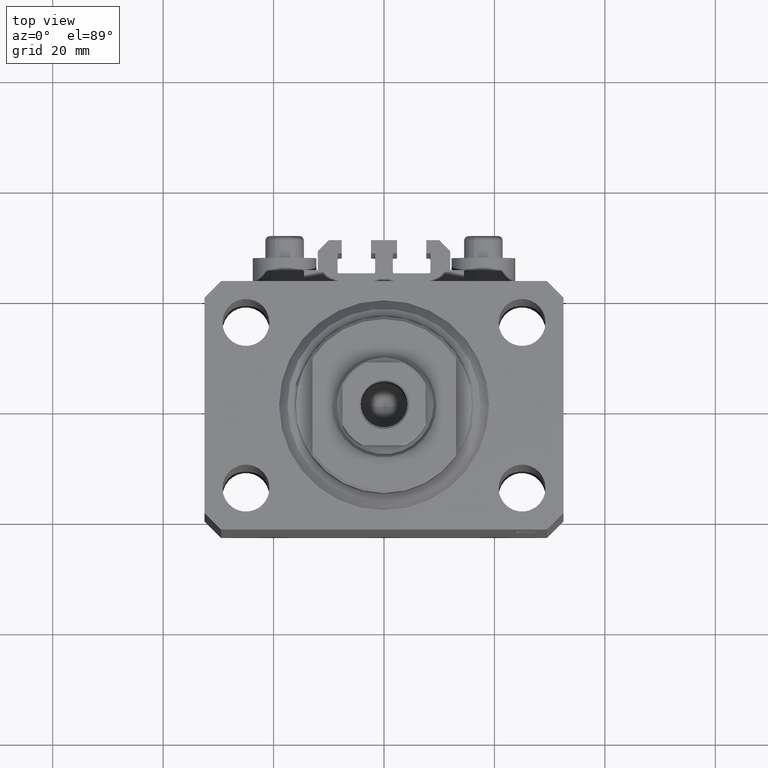
[diagram: clean part render]
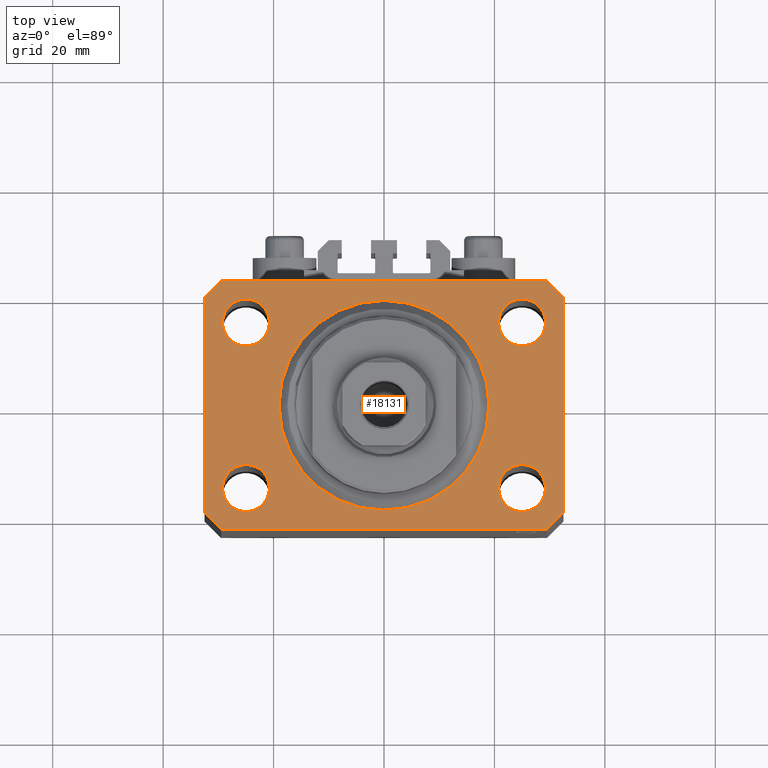
[diagram: same view with one face highlighted and labeled with its STEP entity id]
A machine part, top view. The second image highlights one B-rep face of the part: STEP entity #18131.
In plain terms, the highlighted planar face has unit normal (0, 0, 1).
Its self-contained STEP definition (entity closure, byte-faithful):
#258 = DIRECTION ( 'NONE',  ( 0.000000000000000000, 0.000000000000000000, 1.000000000000000000 ) ) ;
#282 = EDGE_LOOP ( 'NONE', ( #23242, #38615 ) ) ;
#377 = CIRCLE ( 'NONE', #29473, 4.250000000021375790 ) ;
#382 = CIRCLE ( 'NONE', #43927, 4.249999999957291053 ) ;
#492 = CARTESIAN_POINT ( 'NONE',  ( 0.000000000000000000, 0.000000000000000000, 0.000000000000000000 ) ) ;
#598 = CARTESIAN_POINT ( 'NONE',  ( 29.49999999999650413, -22.49999999999949196, 0.000000000000000000 ) ) ;
#769 = CIRCLE ( 'NONE', #43670, 4.250000000040370374 ) ;
#1936 = EDGE_LOOP ( 'NONE', ( #15899, #10282 ) ) ;
#2119 = CARTESIAN_POINT ( 'NONE',  ( 19.00000000000000000, 0.000000000000000000, 0.000000000000000000 ) ) ;
#2207 = CARTESIAN_POINT ( 'NONE',  ( -29.25000000002137668, 14.99999999999999645, 0.000000000000000000 ) ) ;
#2208 = EDGE_CURVE ( 'NONE', #18739, #9993, #382, .T. ) ;
#2263 = CARTESIAN_POINT ( 'NONE',  ( 29.49999999999707967, 22.49999999999952038, 0.000000000000000000 ) ) ;
#2501 = CIRCLE ( 'NONE', #39274, 4.249999999957291053 ) ;
#2664 = CIRCLE ( 'NONE', #42494, 4.249999999976314058 ) ;
#3399 = DIRECTION ( 'NONE',  ( 1.000000000000000000, 0.000000000000000000, 0.000000000000000000 ) ) ;
#3644 = DIRECTION ( 'NONE',  ( -1.000000000000000000, -3.528251137580330676E-16, 0.000000000000000000 ) ) ;
#3720 = CIRCLE ( 'NONE', #34348, 19.00000000000000000 ) ;
#3729 = CARTESIAN_POINT ( 'NONE',  ( -29.49999999999650413, 22.49999999999949907, 0.000000000000000000 ) ) ;
#4151 = CARTESIAN_POINT ( 'NONE',  ( 0.000000000000000000, 0.000000000000000000, 0.000000000000000000 ) ) ;
#4335 = EDGE_CURVE ( 'NONE', #46810, #15173, #20897, .T. ) ;
#4397 = ORIENTED_EDGE ( 'NONE', *, *, #4335, .T. ) ;
#4534 = DIRECTION ( 'NONE',  ( 0.000000000000000000, 0.000000000000000000, 1.000000000000000000 ) ) ;
#4600 = VECTOR ( 'NONE', #32973, 1000.000000000000000 ) ;
#4688 = LINE ( 'NONE', #8508, #6266 ) ;
#4802 = ORIENTED_EDGE ( 'NONE', *, *, #22401, .F. ) ;
#4807 = VERTEX_POINT ( 'NONE', #2207 ) ;
#4814 = EDGE_CURVE ( 'NONE', #8331, #34739, #2664, .T. ) ;
#4881 = EDGE_CURVE ( 'NONE', #47151, #4807, #377, .T. ) ;
#5317 = AXIS2_PLACEMENT_3D ( 'NONE', #38126, #46043, #38364 ) ;
#5551 = AXIS2_PLACEMENT_3D ( 'NONE', #36046, #32672, #17812 ) ;
#6266 = VECTOR ( 'NONE', #16642, 1000.000000000000000 ) ;
#6423 = CARTESIAN_POINT ( 'NONE',  ( -32.49999999999650413, -19.49999999999949907, 0.000000000000000000 ) ) ;
#7084 = DIRECTION ( 'NONE',  ( 1.334402673828349134E-14, 1.000000000000000000, 0.000000000000000000 ) ) ;
#7190 = CARTESIAN_POINT ( 'NONE',  ( -20.74999999995962341, -15.00000000000000355, 0.000000000000000000 ) ) ;
#7585 = AXIS2_PLACEMENT_3D ( 'NONE', #4151, #29803, #29104 ) ;
#8331 = VERTEX_POINT ( 'NONE', #20504 ) ;
#8508 = CARTESIAN_POINT ( 'NONE',  ( 32.49999999999702993, 19.49999999999945999, 0.000000000000000000 ) ) ;
#9144 = CARTESIAN_POINT ( 'NONE',  ( -24.99999999999999289, -15.00000000000000355, 0.000000000000000000 ) ) ;
#9378 = DIRECTION ( 'NONE',  ( 1.000000000000000000, 0.000000000000000000, 0.000000000000000000 ) ) ;
#9993 = VERTEX_POINT ( 'NONE', #13358 ) ;
#10282 = ORIENTED_EDGE ( 'NONE', *, *, #47055, .F. ) ;
#10333 = DIRECTION ( 'NONE',  ( 0.000000000000000000, 0.000000000000000000, 1.000000000000000000 ) ) ;
#10358 = EDGE_CURVE ( 'NONE', #4807, #47151, #21223, .T. ) ;
#10421 = DIRECTION ( 'NONE',  ( 1.000000000000000000, 0.000000000000000000, 0.000000000000000000 ) ) ;
#10814 = EDGE_LOOP ( 'NONE', ( #45401, #13411 ) ) ;
#12202 = CARTESIAN_POINT ( 'NONE',  ( 20.75000000004271072, 14.99999999999999289, 0.000000000000000000 ) ) ;
#12394 = VERTEX_POINT ( 'NONE', #7190 ) ;
#12815 = ORIENTED_EDGE ( 'NONE', *, *, #2208, .F. ) ;
#12825 = VERTEX_POINT ( 'NONE', #40117 ) ;
#12961 = CARTESIAN_POINT ( 'NONE',  ( -32.49999999999650413, -19.49999999999949907, 0.000000000000000000 ) ) ;
#13162 = ORIENTED_EDGE ( 'NONE', *, *, #29816, .T. ) ;
#13235 = CARTESIAN_POINT ( 'NONE',  ( 24.99999999999999289, -15.00000000000000355, 0.000000000000000000 ) ) ;
#13358 = CARTESIAN_POINT ( 'NONE',  ( 29.24999999995729283, 14.99999999999999289, 0.000000000000000000 ) ) ;
#13411 = ORIENTED_EDGE ( 'NONE', *, *, #21445, .F. ) ;
#13828 = AXIS2_PLACEMENT_3D ( 'NONE', #9144, #15866, #9378 ) ;
#14385 = VECTOR ( 'NONE', #7084, 1000.000000000000000 ) ;
#14653 = CARTESIAN_POINT ( 'NONE',  ( 29.49999999999707967, 22.49999999999952038, 0.000000000000000000 ) ) ;
#15088 = DIRECTION ( 'NONE',  ( 1.000000000000000000, 0.000000000000000000, 0.000000000000000000 ) ) ;
#15173 = VERTEX_POINT ( 'NONE', #12961 ) ;
#15306 = EDGE_CURVE ( 'NONE', #12394, #16658, #769, .T. ) ;
#15475 = EDGE_CURVE ( 'NONE', #30407, #41271, #18346, .T. ) ;
#15866 = DIRECTION ( 'NONE',  ( 0.000000000000000000, 0.000000000000000000, 1.000000000000000000 ) ) ;
#15899 = ORIENTED_EDGE ( 'NONE', *, *, #46505, .F. ) ;
#16642 = DIRECTION ( 'NONE',  ( -0.7071067811865344721, 0.7071067811865606734, 0.000000000000000000 ) ) ;
#16658 = VERTEX_POINT ( 'NONE', #45961 ) ;
#16705 = DIRECTION ( 'NONE',  ( -0.7071067811865474617, -0.7071067811865474617, 0.000000000000000000 ) ) ;
#16767 = FACE_BOUND ( 'NONE', #10814, .T. ) ;
#17035 = EDGE_CURVE ( 'NONE', #12825, #30407, #26625, .T. ) ;
#17068 = DIRECTION ( 'NONE',  ( 0.000000000000000000, 0.000000000000000000, 1.000000000000000000 ) ) ;
#17569 = CIRCLE ( 'NONE', #13828, 4.250000000040370374 ) ;
#17636 = VECTOR ( 'NONE', #23025, 1000.000000000000000 ) ;
#17812 = DIRECTION ( 'NONE',  ( 1.000000000000000000, 0.000000000000000000, 0.000000000000000000 ) ) ;
#17866 = EDGE_CURVE ( 'NONE', #16658, #12394, #17569, .T. ) ;
#18131 = ADVANCED_FACE ( 'NONE', ( #23978, #34773, #16767, #27116, #23276, #23502 ), #41731, .T. ) ;
#18304 = VECTOR ( 'NONE', #21538, 1000.000000000000114 ) ;
#18346 = LINE ( 'NONE', #598, #4600 ) ;
#18739 = VERTEX_POINT ( 'NONE', #12202 ) ;
#19094 = CIRCLE ( 'NONE', #7585, 19.00000000000000000 ) ;
#19169 = DIRECTION ( 'NONE',  ( 1.000000000000000000, 0.000000000000000000, 0.000000000000000000 ) ) ;
#19211 = EDGE_LOOP ( 'NONE', ( #4802, #12815 ) ) ;
#20504 = CARTESIAN_POINT ( 'NONE',  ( 29.24999999997631051, -15.00000000000000355, 0.000000000000000000 ) ) ;
#20867 = VERTEX_POINT ( 'NONE', #2263 ) ;
#20897 = LINE ( 'NONE', #24254, #35573 ) ;
#21223 = CIRCLE ( 'NONE', #42660, 4.250000000021375790 ) ;
#21445 = EDGE_CURVE ( 'NONE', #34739, #8331, #23942, .T. ) ;
#21457 = ORIENTED_EDGE ( 'NONE', *, *, #10358, .F. ) ;
#21538 = DIRECTION ( 'NONE',  ( 0.7071067811865474617, -0.7071067811865474617, 0.000000000000000000 ) ) ;
#22123 = CARTESIAN_POINT ( 'NONE',  ( 32.49999999999651124, -19.49999999999949196, 0.000000000000000000 ) ) ;
#22398 = ORIENTED_EDGE ( 'NONE', *, *, #30093, .T. ) ;
#22401 = EDGE_CURVE ( 'NONE', #9993, #18739, #2501, .T. ) ;
#22550 = DIRECTION ( 'NONE',  ( 1.000000000000000000, 0.000000000000000000, 0.000000000000000000 ) ) ;
#23025 = DIRECTION ( 'NONE',  ( 1.000000000000000000, 1.176083712526788232E-16, 0.000000000000000000 ) ) ;
#23230 = ORIENTED_EDGE ( 'NONE', *, *, #39901, .T. ) ;
#23242 = ORIENTED_EDGE ( 'NONE', *, *, #15306, .F. ) ;
#23276 = FACE_BOUND ( 'NONE', #43480, .T. ) ;
#23333 = CARTESIAN_POINT ( 'NONE',  ( 32.49999999999702993, 19.49999999999945999, 0.000000000000000000 ) ) ;
#23502 = FACE_OUTER_BOUND ( 'NONE', #44325, .T. ) ;
#23635 = CARTESIAN_POINT ( 'NONE',  ( -25.00000000000000000, 14.99999999999999645, 0.000000000000000000 ) ) ;
#23942 = CIRCLE ( 'NONE', #5551, 4.249999999976314058 ) ;
#23978 = FACE_BOUND ( 'NONE', #1936, .T. ) ;
#24044 = DIRECTION ( 'NONE',  ( 1.000000000000000000, 0.000000000000000000, 0.000000000000000000 ) ) ;
#24254 = CARTESIAN_POINT ( 'NONE',  ( -32.49999999999650413, 19.49999999999949907, 0.000000000000000000 ) ) ;
#24346 = VERTEX_POINT ( 'NONE', #2119 ) ;
#24843 = DIRECTION ( 'NONE',  ( 0.000000000000000000, 0.000000000000000000, 1.000000000000000000 ) ) ;
#25327 = LINE ( 'NONE', #39943, #14385 ) ;
#25351 = VERTEX_POINT ( 'NONE', #3729 ) ;
#25892 = CARTESIAN_POINT ( 'NONE',  ( 25.00000000000000000, 14.99999999999999289, 0.000000000000000000 ) ) ;
#26290 = ORIENTED_EDGE ( 'NONE', *, *, #17035, .T. ) ;
#26561 = ORIENTED_EDGE ( 'NONE', *, *, #15475, .T. ) ;
#26625 = LINE ( 'NONE', #45087, #17636 ) ;
#27116 = FACE_BOUND ( 'NONE', #19211, .T. ) ;
#27252 = DIRECTION ( 'NONE',  ( 1.000000000000000000, 0.000000000000000000, 0.000000000000000000 ) ) ;
#28900 = CARTESIAN_POINT ( 'NONE',  ( -19.00000000000000000, 2.326828918379970970E-15, 0.000000000000000000 ) ) ;
#29104 = DIRECTION ( 'NONE',  ( 1.000000000000000000, 0.000000000000000000, 0.000000000000000000 ) ) ;
#29473 = AXIS2_PLACEMENT_3D ( 'NONE', #40307, #10333, #3399 ) ;
#29734 = DIRECTION ( 'NONE',  ( 0.000000000000000000, 0.000000000000000000, 1.000000000000000000 ) ) ;
#29803 = DIRECTION ( 'NONE',  ( 0.000000000000000000, 0.000000000000000000, 1.000000000000000000 ) ) ;
#29816 = EDGE_CURVE ( 'NONE', #25351, #46810, #45277, .T. ) ;
#30093 = EDGE_CURVE ( 'NONE', #30395, #20867, #4688, .T. ) ;
#30395 = VERTEX_POINT ( 'NONE', #23333 ) ;
#30407 = VERTEX_POINT ( 'NONE', #37471 ) ;
#30842 = DIRECTION ( 'NONE',  ( 0.000000000000000000, 0.000000000000000000, 1.000000000000000000 ) ) ;
#32672 = DIRECTION ( 'NONE',  ( 0.000000000000000000, 0.000000000000000000, 1.000000000000000000 ) ) ;
#32973 = DIRECTION ( 'NONE',  ( 0.7071067811865483499, 0.7071067811865466846, 0.000000000000000000 ) ) ;
#34348 = AXIS2_PLACEMENT_3D ( 'NONE', #492, #258, #15088 ) ;
#34739 = VERTEX_POINT ( 'NONE', #35312 ) ;
#34773 = FACE_BOUND ( 'NONE', #282, .T. ) ;
#35312 = CARTESIAN_POINT ( 'NONE',  ( 20.75000000002367884, -15.00000000000000355, 0.000000000000000000 ) ) ;
#35519 = DIRECTION ( 'NONE',  ( 0.000000000000000000, -1.000000000000000000, 0.000000000000000000 ) ) ;
#35573 = VECTOR ( 'NONE', #35519, 1000.000000000000000 ) ;
#35610 = ORIENTED_EDGE ( 'NONE', *, *, #42031, .T. ) ;
#35633 = CARTESIAN_POINT ( 'NONE',  ( -24.99999999999999289, -15.00000000000000355, 0.000000000000000000 ) ) ;
#35687 = LINE ( 'NONE', #6423, #18304 ) ;
#36046 = CARTESIAN_POINT ( 'NONE',  ( 24.99999999999999289, -15.00000000000000355, 0.000000000000000000 ) ) ;
#36934 = CARTESIAN_POINT ( 'NONE',  ( 25.00000000000000000, 14.99999999999999289, 0.000000000000000000 ) ) ;
#37471 = CARTESIAN_POINT ( 'NONE',  ( 29.49999999999650413, -22.49999999999949196, 0.000000000000000000 ) ) ;
#38126 = CARTESIAN_POINT ( 'NONE',  ( 0.000000000000000000, 0.000000000000000000, 0.000000000000000000 ) ) ;
#38364 = DIRECTION ( 'NONE',  ( 1.000000000000000000, 0.000000000000000000, -0.000000000000000000 ) ) ;
#38615 = ORIENTED_EDGE ( 'NONE', *, *, #17866, .F. ) ;
#39274 = AXIS2_PLACEMENT_3D ( 'NONE', #36934, #29734, #22550 ) ;
#39901 = EDGE_CURVE ( 'NONE', #41271, #30395, #25327, .T. ) ;
#39943 = CARTESIAN_POINT ( 'NONE',  ( 32.49999999999651124, -19.49999999999949196, 0.000000000000000000 ) ) ;
#40117 = CARTESIAN_POINT ( 'NONE',  ( -29.49999999999650413, -22.49999999999949907, 0.000000000000000000 ) ) ;
#40307 = CARTESIAN_POINT ( 'NONE',  ( -25.00000000000000000, 14.99999999999999645, 0.000000000000000000 ) ) ;
#41271 = VERTEX_POINT ( 'NONE', #22123 ) ;
#41438 = CARTESIAN_POINT ( 'NONE',  ( -29.49999999999650413, 22.49999999999949907, 0.000000000000000000 ) ) ;
#41731 = PLANE ( 'NONE',  #5317 ) ;
#41786 = CARTESIAN_POINT ( 'NONE',  ( -20.74999999997862687, 14.99999999999999645, 0.000000000000000000 ) ) ;
#41810 = VERTEX_POINT ( 'NONE', #28900 ) ;
#41913 = ORIENTED_EDGE ( 'NONE', *, *, #42466, .T. ) ;
#42031 = EDGE_CURVE ( 'NONE', #20867, #25351, #47303, .T. ) ;
#42466 = EDGE_CURVE ( 'NONE', #15173, #12825, #35687, .T. ) ;
#42494 = AXIS2_PLACEMENT_3D ( 'NONE', #13235, #17068, #24044 ) ;
#42660 = AXIS2_PLACEMENT_3D ( 'NONE', #23635, #30842, #27252 ) ;
#43480 = EDGE_LOOP ( 'NONE', ( #46396, #21457 ) ) ;
#43670 = AXIS2_PLACEMENT_3D ( 'NONE', #35633, #24843, #10421 ) ;
#43927 = AXIS2_PLACEMENT_3D ( 'NONE', #25892, #4534, #19169 ) ;
#44028 = CARTESIAN_POINT ( 'NONE',  ( -32.49999999999650413, 19.49999999999949907, 0.000000000000000000 ) ) ;
#44325 = EDGE_LOOP ( 'NONE', ( #35610, #13162, #4397, #41913, #26290, #26561, #23230, #22398 ) ) ;
#44590 = VECTOR ( 'NONE', #16705, 1000.000000000000114 ) ;
#45087 = CARTESIAN_POINT ( 'NONE',  ( -29.49999999999650413, -22.49999999999949907, 0.000000000000000000 ) ) ;
#45277 = LINE ( 'NONE', #41438, #44590 ) ;
#45401 = ORIENTED_EDGE ( 'NONE', *, *, #4814, .F. ) ;
#45961 = CARTESIAN_POINT ( 'NONE',  ( -29.25000000004036593, -15.00000000000000355, 0.000000000000000000 ) ) ;
#46043 = DIRECTION ( 'NONE',  ( 0.000000000000000000, 0.000000000000000000, 1.000000000000000000 ) ) ;
#46396 = ORIENTED_EDGE ( 'NONE', *, *, #4881, .F. ) ;
#46505 = EDGE_CURVE ( 'NONE', #24346, #41810, #3720, .T. ) ;
#46810 = VERTEX_POINT ( 'NONE', #44028 ) ;
#47055 = EDGE_CURVE ( 'NONE', #41810, #24346, #19094, .T. ) ;
#47151 = VERTEX_POINT ( 'NONE', #41786 ) ;
#47303 = LINE ( 'NONE', #14653, #47420 ) ;
#47420 = VECTOR ( 'NONE', #3644, 1000.000000000000000 ) ;